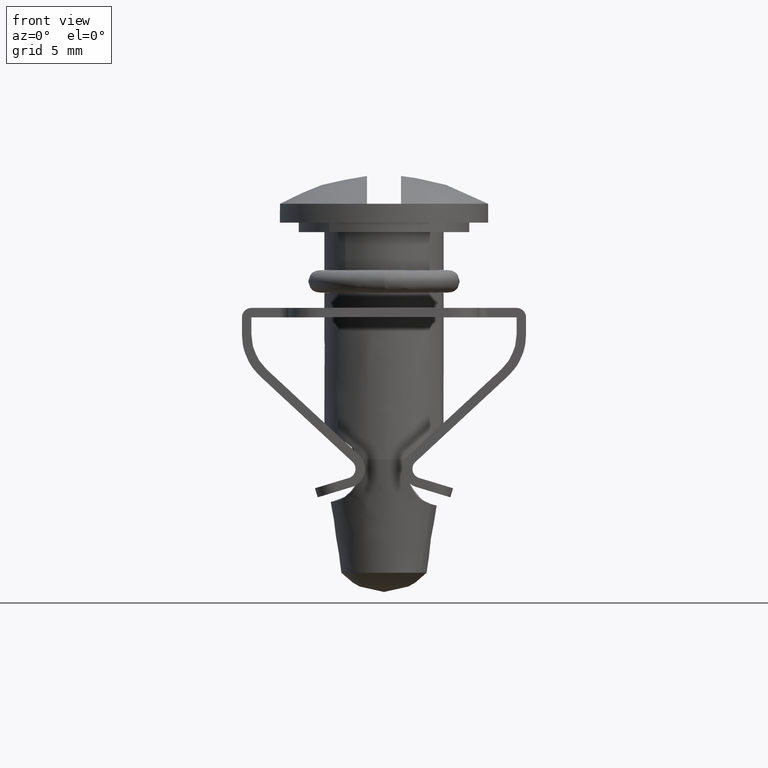
[diagram: clean part render]
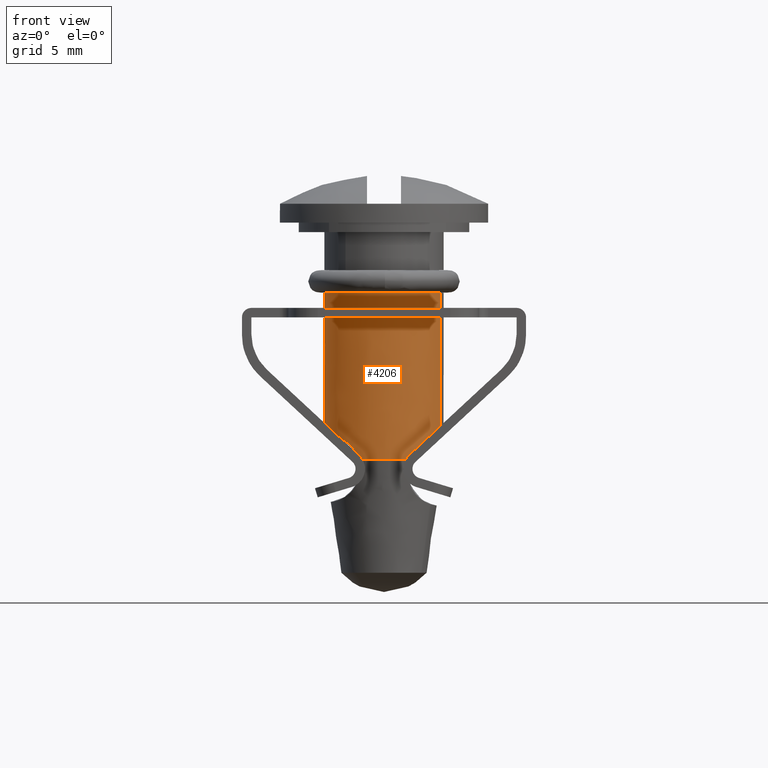
[diagram: same view with one face highlighted and labeled with its STEP entity id]
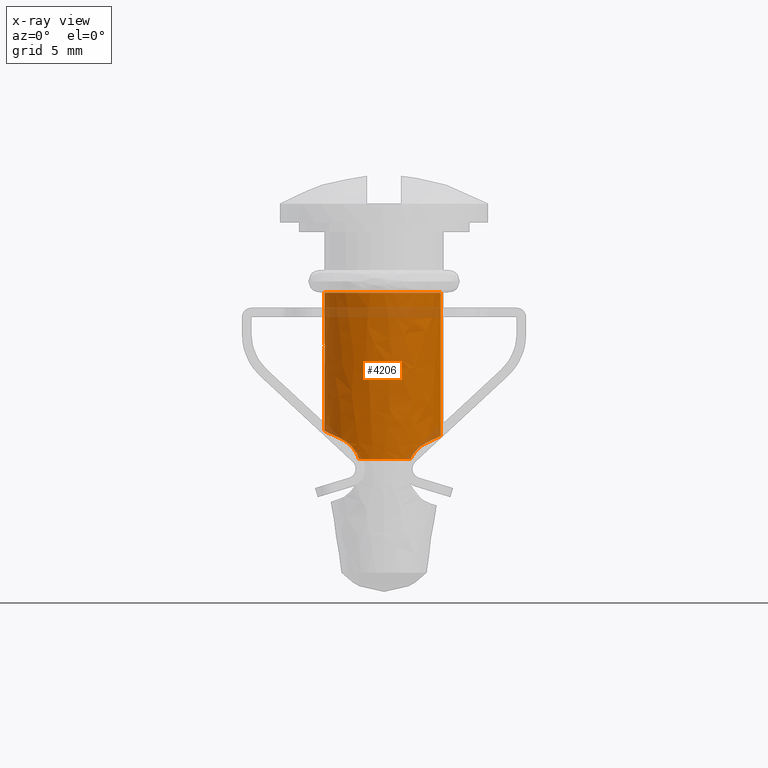
[diagram: x-ray of the same camera — body ghosted, the highlighted face saturated]
A machine part, front view. The second image highlights one B-rep face of the part: STEP entity #4206.
The next image is the same camera in x-ray: the body ghosted, the highlighted face saturated — about 7% of this face is hidden behind the body in this view.
In plain terms, the highlighted face is a freeform B-spline surface patch.
Its self-contained STEP definition (entity closure, byte-faithful):
#2759=CARTESIAN_POINT('',(-1.322387333299544,2.858984389731580,7.0));
#2760=VERTEX_POINT('',#2759);
#2792=CARTESIAN_POINT('',(1.395411921601278,2.824061891859485,7.0));
#2793=VERTEX_POINT('',#2792);
#2794=CARTESIAN_POINT('',(-1.322387333299544,2.858984389731580,7.0));
#2795=CARTESIAN_POINT('',(-1.096566479106238,2.963497871756360,6.999999999999982));
#2796=CARTESIAN_POINT('',(-0.676062852039253,3.100294242473618,7.000000000000007));
#2797=CARTESIAN_POINT('',(0.010858796826397,3.173164579598266,7.000000000000027));
#2798=CARTESIAN_POINT('',(0.699929161584330,3.101619472257834,6.999999999999943));
#2799=CARTESIAN_POINT('',(1.172349518827702,2.934336000813441,7.000000000000037));
#2800=CARTESIAN_POINT('',(1.395411921601278,2.824061891859485,7.0));
#2801=B_SPLINE_CURVE_WITH_KNOTS('',3,(#2794,#2795,#2796,#2797,#2798,#2799,#2800),.UNSPECIFIED.,.F.,.U.,(4,1,1,1,4),(7.615238E-009,0.746488413653883,1.317335359044029,2.063820383222060,2.810308789260694),.UNSPECIFIED.);
#2802=EDGE_CURVE('',#2760,#2793,#2801,.T.);
#2908=CARTESIAN_POINT('',(1.395411921601276,-2.824061891859485,7.0));
#2909=VERTEX_POINT('',#2908);
#2947=CARTESIAN_POINT('',(-1.322387333299544,-2.858984389731580,7.0));
#2948=VERTEX_POINT('',#2947);
#2949=CARTESIAN_POINT('',(1.395411921601276,-2.824061891859485,7.0));
#2950=CARTESIAN_POINT('',(1.218266350684133,-2.911612161101280,6.999999999999997));
#2951=CARTESIAN_POINT('',(0.833696305840394,-3.058470592086884,7.000000000000011));
#2952=CARTESIAN_POINT('',(0.311681866547684,-3.147912894521021,6.999999999999983));
#2953=CARTESIAN_POINT('',(-0.179385523742985,-3.154196581258229,7.000000000000028));
#2954=CARTESIAN_POINT('',(-0.704094715502183,-3.091166888789976,6.999999999999974));
#2955=CARTESIAN_POINT('',(-1.096566783072082,-2.963502417372394,7.000000000000019));
#2956=CARTESIAN_POINT('',(-1.322387333299544,-2.858984389731580,7.0));
#2957=B_SPLINE_CURVE_WITH_KNOTS('',3,(#2949,#2950,#2951,#2952,#2953,#2954,#2955,#2956),.UNSPECIFIED.,.F.,.U.,(4,1,1,1,1,4),(7.615033E-009,0.592798460324904,1.229514547760327,1.580794249115467,2.063820383222032,2.810308789260691),.UNSPECIFIED.);
#2958=EDGE_CURVE('',#2909,#2948,#2957,.T.);
#3972=CARTESIAN_POINT('',(2.994452941012356,-0.977625482514879,16.019999999999996));
#3973=CARTESIAN_POINT('',(2.645289531695055,-2.047108036544130,16.020000000000003));
#3974=CARTESIAN_POINT('',(1.697609511141199,-2.653417032372208,16.020000000000000));
#3975=CARTESIAN_POINT('',(-0.955807521231009,-4.351026543513407,16.019999999999996));
#3976=CARTESIAN_POINT('',(-2.653417032372208,-1.697609511141199,16.020000000000000));
#3977=CARTESIAN_POINT('',(-4.351026543513407,0.955807521231009,16.019999999999996));
#3978=CARTESIAN_POINT('',(-1.697609511141199,2.653417032372208,16.020000000000000));
#3979=CARTESIAN_POINT('',(0.955807521231009,4.351026543513407,16.019999999999996));
#3980=CARTESIAN_POINT('',(2.653417032372208,1.697609511141199,16.020000000000000));
#3981=CARTESIAN_POINT('',(2.994452941012356,-0.977625482514879,6.774500000000000));
#3982=CARTESIAN_POINT('',(2.645289531695055,-2.047108036544130,6.774500000000001));
#3983=CARTESIAN_POINT('',(1.697609511141199,-2.653417032372208,6.774500000000000));
#3984=CARTESIAN_POINT('',(-0.955807521231009,-4.351026543513407,6.774500000000000));
#3985=CARTESIAN_POINT('',(-2.653417032372208,-1.697609511141199,6.774500000000000));
#3986=CARTESIAN_POINT('',(-4.351026543513407,0.955807521231009,6.774500000000000));
#3987=CARTESIAN_POINT('',(-1.697609511141199,2.653417032372208,6.774500000000000));
#3988=CARTESIAN_POINT('',(0.955807521231009,4.351026543513407,6.774500000000000));
#3989=CARTESIAN_POINT('',(2.653417032372208,1.697609511141199,6.774500000000000));
#3997=(BOUNDED_SURFACE()B_SPLINE_SURFACE(2,1,((#3972,#3981),(#3973,#3982),(#3974,#3983),(#3975,#3984),(#3976,#3985),(#3977,#3986),(#3978,#3987),(#3979,#3988),(#3980,#3989)),.UNSPECIFIED.,.F.,.F.,.U.)B_SPLINE_SURFACE_WITH_KNOTS((3,2,2,2,3),(2,2),(0.0,2.296399989796438,7.515490875697434,12.734581761598429,17.953672647499420),(0.0,9.245500000000000),.UNSPECIFIED.)GEOMETRIC_REPRESENTATION_ITEM()RATIONAL_B_SPLINE_SURFACE(((0.855662221768731,0.855662221768731),(0.871126983722081,0.871126983722081),(1.0,1.0),(0.707106781186548,0.707106781186548),(1.0,1.0),(0.707106781186548,0.707106781186548),(1.0,1.0),(0.707106781186548,0.707106781186548),(1.0,1.0)))REPRESENTATION_ITEM('')SURFACE());
#3998=CARTESIAN_POINT('',(2.994452726930269,-0.977626138244735,8.227602882846384));
#3999=VERTEX_POINT('',#3998);
#4000=CARTESIAN_POINT('',(2.261600000000000,-2.192638921482470,7.886915730406150));
#4001=VERTEX_POINT('',#4000);
#4002=CARTESIAN_POINT('',(2.994452726930269,-0.977626138244735,8.227602882846384));
#4003=CARTESIAN_POINT('',(2.768460216080158,-1.669837266622252,8.122544272034705));
#4004=CARTESIAN_POINT('',(2.261600000000000,-2.192638921482470,7.886915730406150));
#4012=(BOUNDED_CURVE()B_SPLINE_CURVE(2,(#4002,#4003,#4004),.UNSPECIFIED.,.F.,.U.)B_SPLINE_CURVE_WITH_KNOTS((3,3),(0.696344297117701,1.0),.UNSPECIFIED.)CURVE()GEOMETRIC_REPRESENTATION_ITEM()RATIONAL_B_SPLINE_CURVE((0.880729385489944,0.914359451923610,1.0))REPRESENTATION_ITEM(''));
#4013=EDGE_CURVE('',#3999,#4001,#4012,.T.);
#4014=ORIENTED_EDGE('',*,*,#4013,.F.);
#4015=CARTESIAN_POINT('',(2.994452898525226,-0.977625450863984,15.800000000000001));
#4016=VERTEX_POINT('',#4015);
#4017=CARTESIAN_POINT('',(2.994452898525226,-0.977625450863984,15.800000000000001));
#4018=CARTESIAN_POINT('',(2.994452726930269,-0.977626138244735,8.227602882846384));
#4019=QUASI_UNIFORM_CURVE('',1,(#4017,#4018),.UNSPECIFIED.,.F.,.U.);
#4020=EDGE_CURVE('',#4016,#3999,#4019,.T.);
#4021=ORIENTED_EDGE('',*,*,#4020,.F.);
#4022=CARTESIAN_POINT('',(-0.000000340384968,-3.149999999999981,15.800000000000001));
#4023=VERTEX_POINT('',#4022);
#4024=CARTESIAN_POINT('',(2.994452898525226,-0.977625450863984,15.800000000000001));
#4025=CARTESIAN_POINT('',(2.927371726908565,-1.183191511856656,15.800000000000029));
#4026=CARTESIAN_POINT('',(2.788492551143417,-1.495278561293505,15.799999999999910));
#4027=CARTESIAN_POINT('',(2.483094776659975,-1.961089260708199,15.800000000000130));
#4028=CARTESIAN_POINT('',(2.140289130274486,-2.334922945451281,15.799999999999830));
#4029=CARTESIAN_POINT('',(1.736522435255071,-2.640062687195633,15.800000000000180));
#4030=CARTESIAN_POINT('',(1.367427860745994,-2.846486669523891,15.799999999999820));
#4031=CARTESIAN_POINT('',(0.966189492141941,-3.010191213740620,15.800000000000120));
#4032=CARTESIAN_POINT('',(0.504540874560475,-3.123288989294768,15.799999999999960));
#4033=CARTESIAN_POINT('',(0.164747964357342,-3.150008066361464,15.800000000000010));
#4034=CARTESIAN_POINT('',(-0.000000340384968,-3.149999999999981,15.800000000000001));
#4035=B_SPLINE_CURVE_WITH_KNOTS('',3,(#4024,#4025,#4026,#4027,#4028,#4029,#4030,#4031,#4032,#4033,#4034),.UNSPECIFIED.,.F.,.U.,(4,1,1,1,1,1,1,1,4),(0.000000015772033,0.648696823243581,1.019386591789715,1.668093190055313,2.162325846881172,2.533015525408714,2.934596316301383,3.459736309209960,3.953982672590143),.UNSPECIFIED.);
#4036=EDGE_CURVE('',#4016,#4023,#4035,.T.);
#4037=ORIENTED_EDGE('',*,*,#4036,.T.);
#4038=CARTESIAN_POINT('',(-3.150000000000000,0.0,15.800000000000001));
#4039=VERTEX_POINT('',#4038);
#4040=CARTESIAN_POINT('',(-0.000000340384968,-3.149999999999981,15.800000000000001));
#4041=CARTESIAN_POINT('',(-0.231940909868131,-3.150043234459541,15.800000000000020));
#4042=CARTESIAN_POINT('',(-0.682908739375671,-3.099962863509340,15.799999999999979));
#4043=CARTESIAN_POINT('',(-1.321317051871828,-2.884745493205324,15.800000000000050));
#4044=CARTESIAN_POINT('',(-1.812031131584272,-2.594655147395634,15.799999999999949));
#4045=CARTESIAN_POINT('',(-2.236800091635049,-2.237255618139894,15.800000000000059));
#4046=CARTESIAN_POINT('',(-2.566612190838471,-1.854897108298737,15.799999999999811));
#4047=CARTESIAN_POINT('',(-2.856020765018243,-1.365264067386031,15.800000000000461));
#4048=CARTESIAN_POINT('',(-3.085180280137119,-0.760194531534990,15.799999999999690));
#4049=CARTESIAN_POINT('',(-3.150103908848700,-0.283490246835915,15.800000000000169));
#4050=CARTESIAN_POINT('',(-3.150000000000000,0.0,15.800000000000001));
#4051=B_SPLINE_CURVE_WITH_KNOTS('',3,(#4040,#4041,#4042,#4043,#4044,#4045,#4046,#4047,#4048,#4049,#4050),.UNSPECIFIED.,.F.,.U.,(4,1,1,1,1,1,1,1,4),(8.452028E-009,0.695812896885299,1.352980874380532,2.010149250484526,2.396709462657994,3.015205441283029,3.517744702549008,4.097598449481459,4.948039284208893),.UNSPECIFIED.);
#4052=EDGE_CURVE('',#4023,#4039,#4051,.T.);
#4053=ORIENTED_EDGE('',*,*,#4052,.T.);
#4054=CARTESIAN_POINT('',(0.000000340384955,3.149999999999982,15.800000000000001));
#4055=VERTEX_POINT('',#4054);
#4056=CARTESIAN_POINT('',(-3.150000000000000,0.0,15.800000000000001));
#4057=CARTESIAN_POINT('',(-3.150024817605801,0.206167177869413,15.800000000000020));
#4058=CARTESIAN_POINT('',(-3.109381278147692,0.618494965905614,15.799999999999990));
#4059=CARTESIAN_POINT('',(-2.940253193193382,1.176048463141284,15.799999999999960));
#4060=CARTESIAN_POINT('',(-2.681412439052713,1.682512828919418,15.800000000000090));
#4061=CARTESIAN_POINT('',(-2.370525410660728,2.096346285056826,15.799999999999841));
#4062=CARTESIAN_POINT('',(-1.986866820278602,2.461624238545970,15.800000000000120));
#4063=CARTESIAN_POINT('',(-1.592282213818439,2.732336328467542,15.800000000000029));
#4064=CARTESIAN_POINT('',(-1.196486802604227,2.922498706783950,15.800000000000020));
#4065=CARTESIAN_POINT('',(-0.682884185468613,3.095699399074179,15.799999999999990));
#4066=CARTESIAN_POINT('',(-0.283492528525951,3.150107618843838,15.799999999999960));
#4067=CARTESIAN_POINT('',(0.000000340384955,3.149999999999982,15.800000000000001));
#4068=B_SPLINE_CURVE_WITH_KNOTS('',3,(#4056,#4057,#4058,#4059,#4060,#4061,#4062,#4063,#4064,#4065,#4066,#4067),.UNSPECIFIED.,.F.,.U.,(4,1,1,1,1,1,1,1,1,4),(8.331531E-009,0.618501520507159,1.237010012016607,1.739547118944430,2.319399015580980,2.783263019635359,3.324460739478347,3.749686401648368,4.097598767194127,4.948039667904503),.UNSPECIFIED.);
#4069=EDGE_CURVE('',#4039,#4055,#4068,.T.);
#4070=ORIENTED_EDGE('',*,*,#4069,.T.);
#4071=CARTESIAN_POINT('',(2.653417090497490,1.697609563651977,15.800000000000001));
#4072=VERTEX_POINT('',#4071);
#4073=CARTESIAN_POINT('',(0.000000340384955,3.149999999999982,15.800000000000001));
#4074=CARTESIAN_POINT('',(0.213631371720743,3.150026683774039,15.799999999999979));
#4075=CARTESIAN_POINT('',(0.657320488011397,3.104703064197854,15.800000000000020));
#4076=CARTESIAN_POINT('',(1.199957073764425,2.929095820649091,15.799999999999949));
#4077=CARTESIAN_POINT('',(1.674174938158043,2.681413386530867,15.800000000000120));
#4078=CARTESIAN_POINT('',(2.168752113490871,2.323864874911869,15.799999999999720));
#4079=CARTESIAN_POINT('',(2.489684136812199,1.953785173824009,15.800000000000161));
#4080=CARTESIAN_POINT('',(2.653417090497490,1.697609563651977,15.800000000000001));
#4081=B_SPLINE_CURVE_WITH_KNOTS('',3,(#4073,#4074,#4075,#4076,#4077,#4078,#4079,#4080),.UNSPECIFIED.,.F.,.U.,(4,1,1,1,1,4),(0.000000010542917,0.640891482760568,1.331086272894910,1.700831422608470,2.243125558792407,3.155165931665771),.UNSPECIFIED.);
#4082=EDGE_CURVE('',#4055,#4072,#4081,.T.);
#4083=ORIENTED_EDGE('',*,*,#4082,.T.);
#4084=CARTESIAN_POINT('',(2.653417032387806,1.697609511116797,8.069063900586064));
#4085=VERTEX_POINT('',#4084);
#4086=CARTESIAN_POINT('',(2.653417090497490,1.697609563651977,15.800000000000001));
#4087=CARTESIAN_POINT('',(2.653417032387806,1.697609511116797,8.069063900586064));
#4088=QUASI_UNIFORM_CURVE('',1,(#4086,#4087),.UNSPECIFIED.,.F.,.U.);
#4089=EDGE_CURVE('',#4072,#4085,#4088,.T.);
#4090=ORIENTED_EDGE('',*,*,#4089,.T.);
#4091=CARTESIAN_POINT('',(2.261600000000000,2.192638921482470,7.886915730406150));
#4092=VERTEX_POINT('',#4091);
#4093=CARTESIAN_POINT('',(2.261600000000000,2.192638921482470,7.886915730406150));
#4094=CARTESIAN_POINT('',(2.482437638067973,1.964855679398619,7.989578882727262));
#4095=CARTESIAN_POINT('',(2.653417032387807,1.697609511116797,8.069063900586064));
#4103=(BOUNDED_CURVE()B_SPLINE_CURVE(2,(#4093,#4094,#4095),.UNSPECIFIED.,.F.,.U.)B_SPLINE_CURVE_WITH_KNOTS((3,3),(0.0,0.139020454986467),.UNSPECIFIED.)CURVE()GEOMETRIC_REPRESENTATION_ITEM()RATIONAL_B_SPLINE_CURVE((1.0,0.960791818346040,0.932485115197531))REPRESENTATION_ITEM(''));
#4104=EDGE_CURVE('',#4092,#4085,#4103,.T.);
#4105=ORIENTED_EDGE('',*,*,#4104,.F.);
#4106=CARTESIAN_POINT('',(2.261600000000000,2.192638921482485,7.886915730406150));
#4107=CARTESIAN_POINT('',(2.181727650848083,2.275023350159799,7.849784618069649));
#4108=CARTESIAN_POINT('',(2.100408922000636,2.349887594555654,7.804690353958638));
#4109=CARTESIAN_POINT('',(1.978626519031075,2.451598342888488,7.722362286660985));
#4110=CARTESIAN_POINT('',(1.938067407175006,2.483735843393476,7.692465605068005));
#4111=CARTESIAN_POINT('',(1.877622659090659,2.529361659331699,7.643500943431158));
#4112=CARTESIAN_POINT('',(1.857483803082896,2.544179472387634,7.626438538702962));
#4113=CARTESIAN_POINT('',(1.817851821335376,2.572646501581898,7.591263539115193));
#4114=CARTESIAN_POINT('',(1.798323154777138,2.586324817863931,7.573126692053715));
#4115=CARTESIAN_POINT('',(1.702242017268508,2.652083677931283,7.479666194027129));
#4116=CARTESIAN_POINT('',(1.630346235803602,2.696313659460142,7.396065367631478));
#4117=CARTESIAN_POINT('',(1.532619910273793,2.752269111175347,7.256318367302809));
#4118=CARTESIAN_POINT('',(1.501566851286453,2.769265477324539,7.206991115769560));
#4119=CARTESIAN_POINT('',(1.444713232799242,2.799345989290815,7.105663975962184));
#4120=CARTESIAN_POINT('',(1.418781409193622,2.812514672699011,7.053546658795225));
#4121=CARTESIAN_POINT('',(1.395411921601278,2.824061891859495,7.000000000000003));
#4122=B_SPLINE_CURVE_WITH_KNOTS('',3,(#4106,#4107,#4108,#4109,#4110,#4111,#4112,#4113,#4114,#4115,#4116,#4117,#4118,#4119,#4120,#4121),.UNSPECIFIED.,.F.,.U.,(4,2,2,2,2,2,2,4),(0.0,0.250000000000002,0.375000000000003,0.437500000000003,0.500000000000002,0.750000000000002,0.875000000000001,1.0),.UNSPECIFIED.);
#4123=EDGE_CURVE('',#4092,#2793,#4122,.T.);
#4124=ORIENTED_EDGE('',*,*,#4123,.T.);
#4125=ORIENTED_EDGE('',*,*,#2802,.F.);
#4126=CARTESIAN_POINT('',(-2.261700000000000,2.192535771658005,8.087000000000000));
#4127=VERTEX_POINT('',#4126);
#4128=CARTESIAN_POINT('',(-1.322387333299540,2.858984389731594,7.000000000000001));
#4129=CARTESIAN_POINT('',(-1.332146768829085,2.854470285362653,7.032741477430438));
#4130=CARTESIAN_POINT('',(-1.342929305303253,2.849422307062862,7.065383138769821));
#4131=CARTESIAN_POINT('',(-1.366235474468144,2.838321199465369,7.129558272145190));
#4132=CARTESIAN_POINT('',(-1.378740171128374,2.832277527194296,7.161066996774459));
#4133=CARTESIAN_POINT('',(-1.418697347744416,2.812593045151520,7.253894564323279));
#4134=CARTESIAN_POINT('',(-1.448587437734020,2.797407105025383,7.313519938232443));
#4135=CARTESIAN_POINT('',(-1.514440156084169,2.762311186243697,7.428312233244457));
#4136=CARTESIAN_POINT('',(-1.550463925858986,2.742367816145132,7.483558177069414));
#4137=CARTESIAN_POINT('',(-1.628066266544298,2.697020551675348,7.589165771131553));
#4138=CARTESIAN_POINT('',(-1.668892103319538,2.672050967071474,7.638527450741682));
#4139=CARTESIAN_POINT('',(-1.753802343736892,2.617104232210268,7.730860454947177));
#4140=CARTESIAN_POINT('',(-1.797889383762812,2.587126690571330,7.773828981257760));
#4141=CARTESIAN_POINT('',(-1.888635897150467,2.521643352519988,7.853700503059018));
#4142=CARTESIAN_POINT('',(-1.935557668929437,2.485909796252262,7.890760990459595));
#4143=CARTESIAN_POINT('',(-2.076043771804284,2.372143814563254,7.991097829175083));
#4144=CARTESIAN_POINT('',(-2.169945670514267,2.287184520235071,8.044340382666206));
#4145=CARTESIAN_POINT('',(-2.261700000000000,2.192535771658005,8.087000000000000));
#4146=B_SPLINE_CURVE_WITH_KNOTS('',3,(#4128,#4129,#4130,#4131,#4132,#4133,#4134,#4135,#4136,#4137,#4138,#4139,#4140,#4141,#4142,#4143,#4144,#4145),.UNSPECIFIED.,.F.,.U.,(4,2,2,2,2,2,2,2,4),(0.0,0.062500000000000,0.125000000000000,0.250000000000000,0.375000000000001,0.500000000000001,0.625000000000001,0.750000000000001,1.0),.UNSPECIFIED.);
#4147=EDGE_CURVE('',#2760,#4127,#4146,.T.);
#4148=ORIENTED_EDGE('',*,*,#4147,.T.);
#4149=CARTESIAN_POINT('',(-2.261700000000000,-2.192535771658005,8.087000000000000));
#4150=VERTEX_POINT('',#4149);
#4151=CARTESIAN_POINT('',(-2.261700000000001,-2.192535771658005,8.086999999999993));
#4152=CARTESIAN_POINT('',(-4.387186629526429,-3.469447E-015,9.075208913649032));
#4153=CARTESIAN_POINT('',(-2.261700000000004,2.192535771658001,8.086999999999993));
#4161=(BOUNDED_CURVE()B_SPLINE_CURVE(2,(#4151,#4152,#4153),.UNSPECIFIED.,.F.,.U.)CURVE()GEOMETRIC_REPRESENTATION_ITEM()QUASI_UNIFORM_CURVE()RATIONAL_B_SPLINE_CURVE((1.0,0.718000000000003,1.0))REPRESENTATION_ITEM(''));
#4162=EDGE_CURVE('',#4150,#4127,#4161,.T.);
#4163=ORIENTED_EDGE('',*,*,#4162,.F.);
#4164=CARTESIAN_POINT('',(-2.261700000000000,-2.192535771658005,8.087000000000000));
#4165=CARTESIAN_POINT('',(-2.169788067091425,-2.287347095307301,8.044267107631161));
#4166=CARTESIAN_POINT('',(-2.075951423030935,-2.372203714318776,7.991008544794901));
#4167=CARTESIAN_POINT('',(-1.959289435816128,-2.466695452424674,7.907716294678596));
#4168=CARTESIAN_POINT('',(-1.935990855492654,-2.485013797059996,7.890217151197741));
#4169=CARTESIAN_POINT('',(-1.889549013631220,-2.520507625303880,7.853424146405606));
#4170=CARTESIAN_POINT('',(-1.866322265394963,-2.537742381438894,7.834054911132117));
#4171=CARTESIAN_POINT('',(-1.797724570010868,-2.587250884977642,7.773695859511032));
#4172=CARTESIAN_POINT('',(-1.753501093192164,-2.617304873388678,7.730552443559317));
#4173=CARTESIAN_POINT('',(-1.668690947126806,-2.672175407241687,7.638289019237856));
#4174=CARTESIAN_POINT('',(-1.628101948448892,-2.696991927007364,7.589170994536302));
#4175=CARTESIAN_POINT('',(-1.570458525736631,-2.730687710296185,7.510789783704817));
#4176=CARTESIAN_POINT('',(-1.551784794131914,-2.741330439908401,7.483877495214586));
#4177=CARTESIAN_POINT('',(-1.515617571270839,-2.761490902705006,7.428426928075417));
#4178=CARTESIAN_POINT('',(-1.498094009184659,-2.771023173114792,7.399821975327797));
#4179=CARTESIAN_POINT('',(-1.414945720925722,-2.815334791377429,7.254861541255605));
#4180=CARTESIAN_POINT('',(-1.361510655122814,-2.840888388437736,7.131253017103554));
#4181=CARTESIAN_POINT('',(-1.322387333299541,-2.858984389731593,7.000000000000004));
#4182=B_SPLINE_CURVE_WITH_KNOTS('',3,(#4164,#4165,#4166,#4167,#4168,#4169,#4170,#4171,#4172,#4173,#4174,#4175,#4176,#4177,#4178,#4179,#4180,#4181),.UNSPECIFIED.,.F.,.U.,(4,2,2,2,2,2,2,2,4),(0.0,0.250000000000007,0.312500000000008,0.375000000000009,0.500000000000008,0.625000000000006,0.687500000000006,0.750000000000005,1.0),.UNSPECIFIED.);
#4183=EDGE_CURVE('',#4150,#2948,#4182,.T.);
#4184=ORIENTED_EDGE('',*,*,#4183,.T.);
#4185=ORIENTED_EDGE('',*,*,#2958,.F.);
#4186=CARTESIAN_POINT('',(1.395411921601278,-2.824061891859495,7.000000000000002));
#4187=CARTESIAN_POINT('',(1.442245490071747,-2.800920713557701,7.107310059800903));
#4188=CARTESIAN_POINT('',(1.498825769357958,-2.771586008130068,7.207788326955227));
#4189=CARTESIAN_POINT('',(1.580509040153892,-2.724856951190546,7.324848275187135));
#4190=CARTESIAN_POINT('',(1.597437868449996,-2.714976246624377,7.347876988765172));
#4191=CARTESIAN_POINT('',(1.631944147010134,-2.694376006486849,7.392521586775001));
#4192=CARTESIAN_POINT('',(1.684798801201477,-2.662149672739892,7.457558262311606));
#4193=CARTESIAN_POINT('',(1.740636826665064,-2.625802477903607,7.517004376398360));
#4194=CARTESIAN_POINT('',(1.817261514989682,-2.573366627871892,7.591557862687647));
#4195=CARTESIAN_POINT('',(1.856661941702177,-2.545162179890287,7.626479509217533));
#4196=CARTESIAN_POINT('',(1.937197344489607,-2.484413519567863,7.691801650191320));
#4197=CARTESIAN_POINT('',(1.978152848314292,-2.451984738187228,7.722028889604047));
#4198=CARTESIAN_POINT('',(2.100394444043118,-2.349917992148016,7.804706778211820));
#4199=CARTESIAN_POINT('',(2.181811029433207,-2.274937349219893,7.849823379163366));
#4200=CARTESIAN_POINT('',(2.261600000000000,-2.192638921482485,7.886915730406150));
#4201=B_SPLINE_CURVE_WITH_KNOTS('',3,(#4186,#4187,#4188,#4189,#4190,#4191,#4192,#4193,#4194,#4195,#4196,#4197,#4198,#4199,#4200),.UNSPECIFIED.,.F.,.U.,(4,2,2,1,2,2,2,4),(0.0,0.250000000000000,0.312499999999999,0.374999999999999,0.499999999999999,0.624999999999999,0.749999999999999,1.0),.UNSPECIFIED.);
#4202=EDGE_CURVE('',#2909,#4001,#4201,.T.);
#4203=ORIENTED_EDGE('',*,*,#4202,.T.);
#4204=EDGE_LOOP('',(#4014,#4021,#4037,#4053,#4070,#4083,#4090,#4105,#4124,#4125,#4148,#4163,#4184,#4185,#4203));
#4205=FACE_OUTER_BOUND('',#4204,.T.);
#4206=ADVANCED_FACE('',(#4205),#3997,.T.);